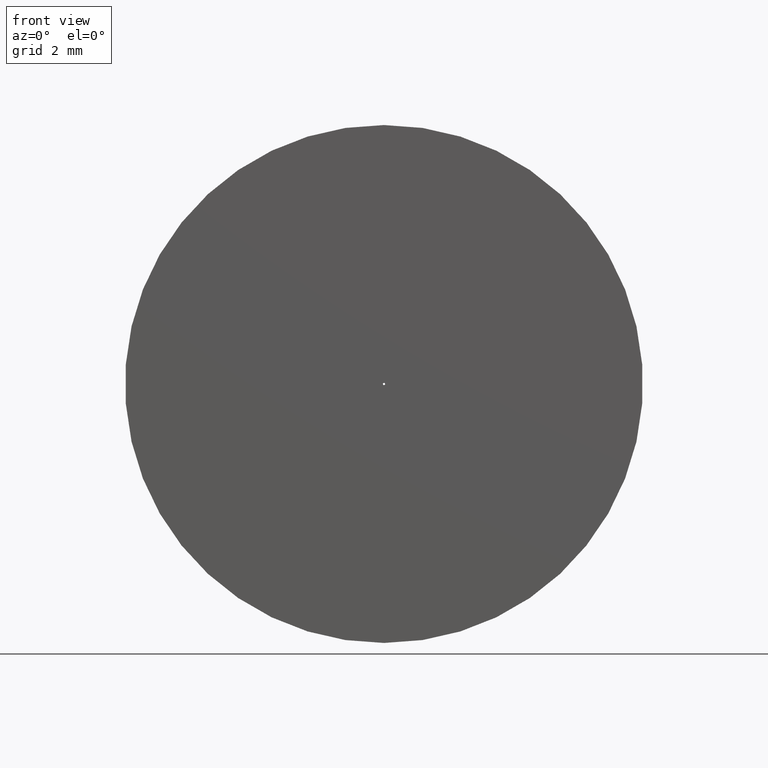
[diagram: clean part render]
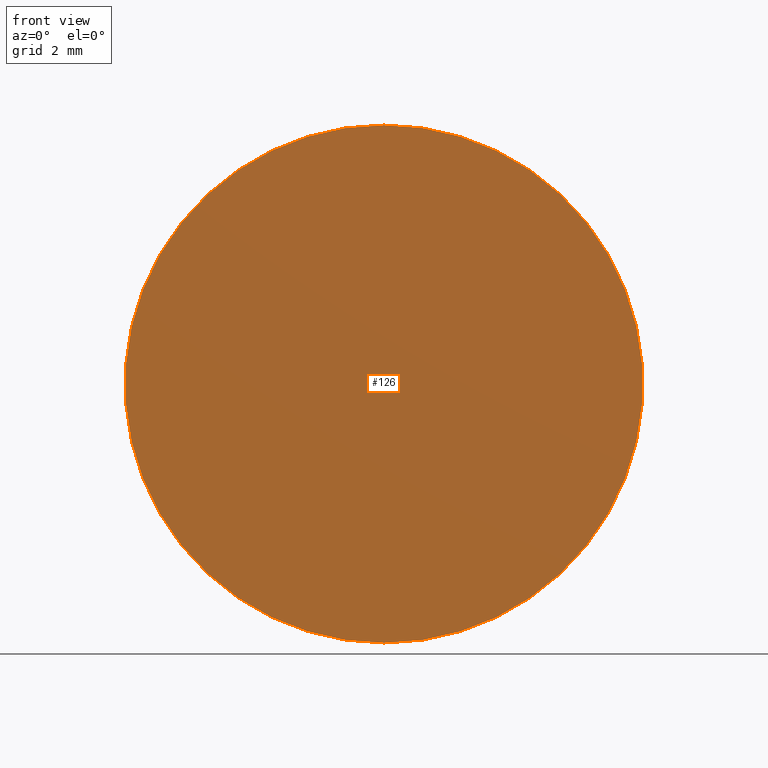
[diagram: same view with one face highlighted and labeled with its STEP entity id]
A machine part, front view. The second image highlights one B-rep face of the part: STEP entity #126.
In plain terms, the highlighted planar face has unit normal (0, 1, 0).
Its self-contained STEP definition (entity closure, byte-faithful):
#16 = EDGE_LOOP ( 'NONE', ( #146, #140 ) ) ;
#18 = ORIENTED_EDGE ( 'NONE', *, *, #239, .F. ) ;
#19 = DIRECTION ( 'NONE',  ( 0.000000000000000000, -0.000000000000000000, 1.000000000000000000 ) ) ;
#20 = EDGE_CURVE ( 'NONE', #247, #211, #200, .T. ) ;
#25 = FACE_OUTER_BOUND ( 'NONE', #164, .T. ) ;
#26 = EDGE_CURVE ( 'NONE', #211, #247, #65, .T. ) ;
#30 = VERTEX_POINT ( 'NONE', #103 ) ;
#33 = CARTESIAN_POINT ( 'NONE',  ( 0.000000000000000000, 0.000000000000000000, 0.000000000000000000 ) ) ;
#34 = AXIS2_PLACEMENT_3D ( 'NONE', #152, #76, #19 ) ;
#40 = CARTESIAN_POINT ( 'NONE',  ( 5.817072295949927426E-16, 0.000000000000000000, 4.750000000000000000 ) ) ;
#41 = CARTESIAN_POINT ( 'NONE',  ( 2.449293598294706384E-18, 0.000000000000000000, 0.02000000000000000042 ) ) ;
#44 = EDGE_CURVE ( 'NONE', #30, #166, #57, .T. ) ;
#53 = DIRECTION ( 'NONE',  ( 0.000000000000000000, 0.000000000000000000, 1.000000000000000000 ) ) ;
#57 = CIRCLE ( 'NONE', #209, 4.750000000000000000 ) ;
#65 = CIRCLE ( 'NONE', #228, 0.02000000000000000042 ) ;
#76 = DIRECTION ( 'NONE',  ( 0.000000000000000000, 1.000000000000000000, 0.000000000000000000 ) ) ;
#88 = CARTESIAN_POINT ( 'NONE',  ( 0.000000000000000000, 0.000000000000000000, 0.000000000000000000 ) ) ;
#93 = CARTESIAN_POINT ( 'NONE',  ( 0.000000000000000000, 0.000000000000000000, -0.02000000000000000042 ) ) ;
#103 = CARTESIAN_POINT ( 'NONE',  ( 0.000000000000000000, 0.000000000000000000, -4.750000000000000000 ) ) ;
#126 = ADVANCED_FACE ( 'NONE', ( #25, #171 ), #175, .F. ) ;
#129 = DIRECTION ( 'NONE',  ( 0.000000000000000000, 0.000000000000000000, 1.000000000000000000 ) ) ;
#133 = CIRCLE ( 'NONE', #217, 4.750000000000000000 ) ;
#135 = DIRECTION ( 'NONE',  ( 0.000000000000000000, 1.000000000000000000, 0.000000000000000000 ) ) ;
#140 = ORIENTED_EDGE ( 'NONE', *, *, #20, .T. ) ;
#145 = DIRECTION ( 'NONE',  ( 0.000000000000000000, 0.000000000000000000, 1.000000000000000000 ) ) ;
#146 = ORIENTED_EDGE ( 'NONE', *, *, #26, .T. ) ;
#152 = CARTESIAN_POINT ( 'NONE',  ( 0.000000000000000000, 0.000000000000000000, 0.000000000000000000 ) ) ;
#162 = AXIS2_PLACEMENT_3D ( 'NONE', #33, #192, #145 ) ;
#164 = EDGE_LOOP ( 'NONE', ( #224, #18 ) ) ;
#166 = VERTEX_POINT ( 'NONE', #40 ) ;
#171 = FACE_BOUND ( 'NONE', #16, .T. ) ;
#175 = PLANE ( 'NONE',  #34 ) ;
#177 = DIRECTION ( 'NONE',  ( 0.000000000000000000, 0.000000000000000000, 1.000000000000000000 ) ) ;
#192 = DIRECTION ( 'NONE',  ( 0.000000000000000000, 1.000000000000000000, 0.000000000000000000 ) ) ;
#200 = CIRCLE ( 'NONE', #162, 0.02000000000000000042 ) ;
#209 = AXIS2_PLACEMENT_3D ( 'NONE', #88, #244, #53 ) ;
#211 = VERTEX_POINT ( 'NONE', #93 ) ;
#217 = AXIS2_PLACEMENT_3D ( 'NONE', #237, #135, #177 ) ;
#224 = ORIENTED_EDGE ( 'NONE', *, *, #44, .F. ) ;
#227 = DIRECTION ( 'NONE',  ( 0.000000000000000000, 1.000000000000000000, 0.000000000000000000 ) ) ;
#228 = AXIS2_PLACEMENT_3D ( 'NONE', #249, #227, #129 ) ;
#237 = CARTESIAN_POINT ( 'NONE',  ( 0.000000000000000000, 0.000000000000000000, 0.000000000000000000 ) ) ;
#239 = EDGE_CURVE ( 'NONE', #166, #30, #133, .T. ) ;
#244 = DIRECTION ( 'NONE',  ( 0.000000000000000000, 1.000000000000000000, 0.000000000000000000 ) ) ;
#247 = VERTEX_POINT ( 'NONE', #41 ) ;
#249 = CARTESIAN_POINT ( 'NONE',  ( 0.000000000000000000, 0.000000000000000000, 0.000000000000000000 ) ) ;